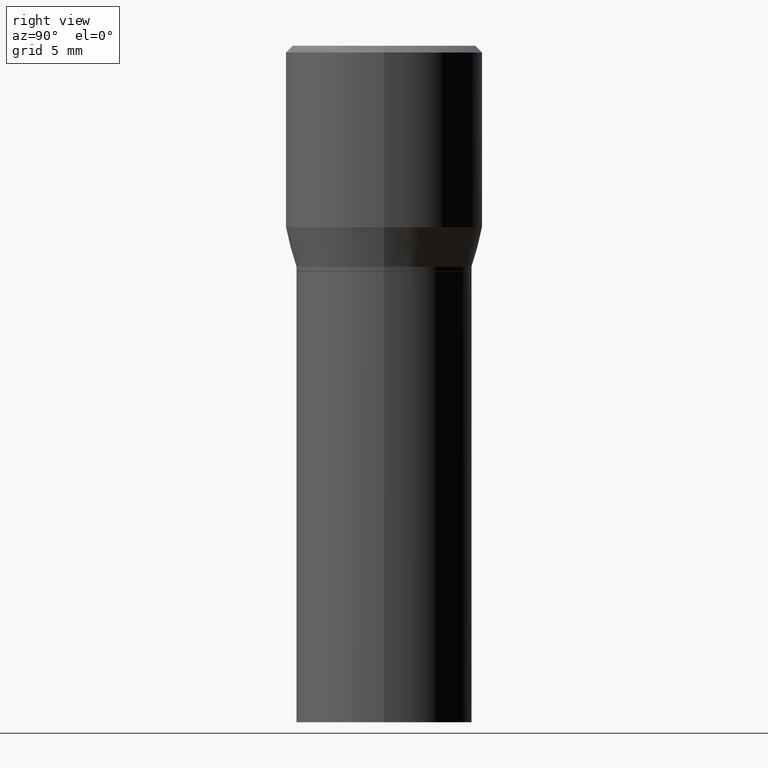
[diagram: clean part render]
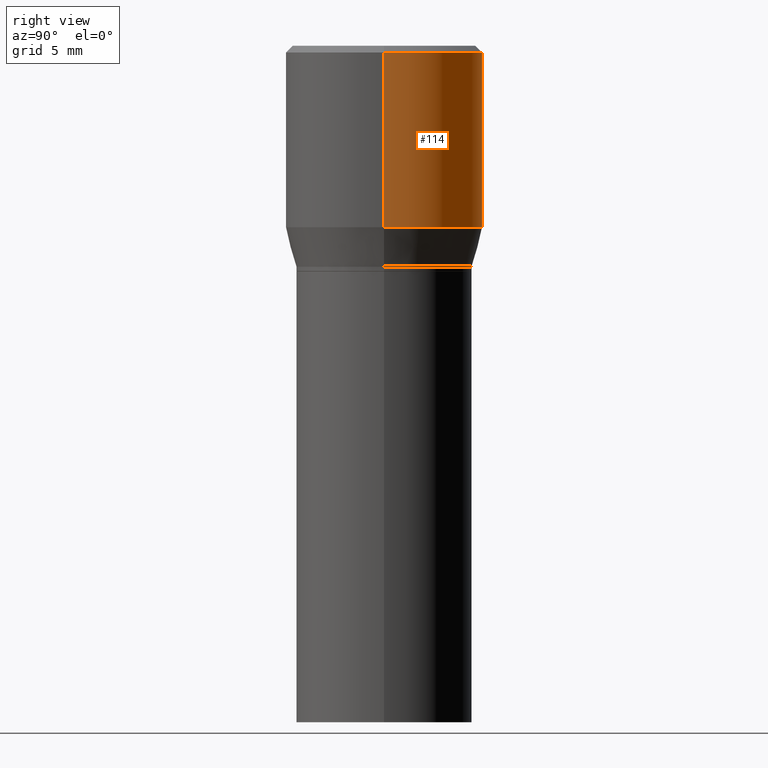
[diagram: same view with one face highlighted and labeled with its STEP entity id]
A machine part, right view. The second image highlights one B-rep face of the part: STEP entity #114.
In plain terms, the highlighted cylindrical surface (partial cylindrical patch) has radius 5.5562 mm, axis along (-0, 0, 1).
Its self-contained STEP definition (entity closure, byte-faithful):
#3 = VECTOR ( 'NONE', #344, 39.37007874015748143 ) ;
#13 = CYLINDRICAL_SURFACE ( 'NONE', #62, 0.2187500000000000000 ) ;
#30 = EDGE_CURVE ( 'NONE', #76, #145, #220, .T. ) ;
#36 = FACE_OUTER_BOUND ( 'NONE', #153, .T. ) ;
#45 = EDGE_CURVE ( 'NONE', #282, #145, #366, .T. ) ;
#62 = AXIS2_PLACEMENT_3D ( 'NONE', #163, #97, #159 ) ;
#76 = VERTEX_POINT ( 'NONE', #367 ) ;
#97 = DIRECTION ( 'NONE',  ( -2.445468806185136597E-29, 3.491481338843145583E-15, 1.000000000000000000 ) ) ;
#114 = ADVANCED_FACE ( 'NONE', ( #36 ), #13, .T. ) ;
#138 = AXIS2_PLACEMENT_3D ( 'NONE', #294, #323, #258 ) ;
#145 = VERTEX_POINT ( 'NONE', #411 ) ;
#153 = EDGE_LOOP ( 'NONE', ( #175, #458, #208, #254 ) ) ;
#159 = DIRECTION ( 'NONE',  ( 1.000000000000000000, -6.982962677686266711E-15, 4.876176775795935232E-29 ) ) ;
#163 = CARTESIAN_POINT ( 'NONE',  ( 0.000000000000000000, 0.000000000000000000, 0.000000000000000000 ) ) ;
#175 = ORIENTED_EDGE ( 'NONE', *, *, #232, .T. ) ;
#208 = ORIENTED_EDGE ( 'NONE', *, *, #45, .F. ) ;
#216 = CARTESIAN_POINT ( 'NONE',  ( -0.2187500000000000000, 1.554312234475219157E-15, -1.076017050993260622E-29 ) ) ;
#220 = LINE ( 'NONE', #216, #419 ) ;
#223 = AXIS2_PLACEMENT_3D ( 'NONE', #250, #369, #371 ) ;
#232 = EDGE_CURVE ( 'NONE', #402, #76, #457, .T. ) ;
#250 = CARTESIAN_POINT ( 'NONE',  ( 3.668203209277705088E-31, -5.237222008264718399E-17, -0.01499999999999999944 ) ) ;
#254 = ORIENTED_EDGE ( 'NONE', *, *, #290, .F. ) ;
#258 = DIRECTION ( 'NONE',  ( 1.000000000000000000, -6.982962677686266711E-15, 0.000000000000000000 ) ) ;
#282 = VERTEX_POINT ( 'NONE', #445 ) ;
#290 = EDGE_CURVE ( 'NONE', #402, #282, #310, .T. ) ;
#294 = CARTESIAN_POINT ( 'NONE',  ( 9.842606206466859638E-30, -1.405263310189985589E-15, -0.4024834085625100810 ) ) ;
#310 = LINE ( 'NONE', #337, #3 ) ;
#323 = DIRECTION ( 'NONE',  ( -2.445468806185136597E-29, 3.491481338843145583E-15, 1.000000000000000000 ) ) ;
#337 = CARTESIAN_POINT ( 'NONE',  ( 0.2187500000000000000, -1.527523085743870843E-15, 1.066663669705360885E-29 ) ) ;
#344 = DIRECTION ( 'NONE',  ( -2.445468806185136877E-29, 3.491481338843145188E-15, 1.000000000000000000 ) ) ;
#366 = CIRCLE ( 'NONE', #223, 0.2187500000000000000 ) ;
#367 = CARTESIAN_POINT ( 'NONE',  ( -0.2187500000000000000, 1.490489242852337896E-16, -0.4024834085625100810 ) ) ;
#369 = DIRECTION ( 'NONE',  ( -2.445468806185136597E-29, 3.491481338843145583E-15, 1.000000000000000000 ) ) ;
#371 = DIRECTION ( 'NONE',  ( 1.000000000000000000, -6.982962677686266711E-15, 0.000000000000000000 ) ) ;
#398 = DIRECTION ( 'NONE',  ( -2.445468806185136877E-29, 3.491481338843145188E-15, 1.000000000000000000 ) ) ;
#402 = VERTEX_POINT ( 'NONE', #409 ) ;
#409 = CARTESIAN_POINT ( 'NONE',  ( 0.2187500000000000000, -2.932786395933856235E-15, -0.4024834085625100810 ) ) ;
#411 = CARTESIAN_POINT ( 'NONE',  ( -0.2187500000000000000, 8.254944693389027239E-16, -0.01499999999999999944 ) ) ;
#419 = VECTOR ( 'NONE', #398, 39.37007874015748143 ) ;
#445 = CARTESIAN_POINT ( 'NONE',  ( 0.2187500000000000000, -1.579895305826517922E-15, -0.01499999999999999944 ) ) ;
#457 = CIRCLE ( 'NONE', #138, 0.2187500000000000000 ) ;
#458 = ORIENTED_EDGE ( 'NONE', *, *, #30, .T. ) ;